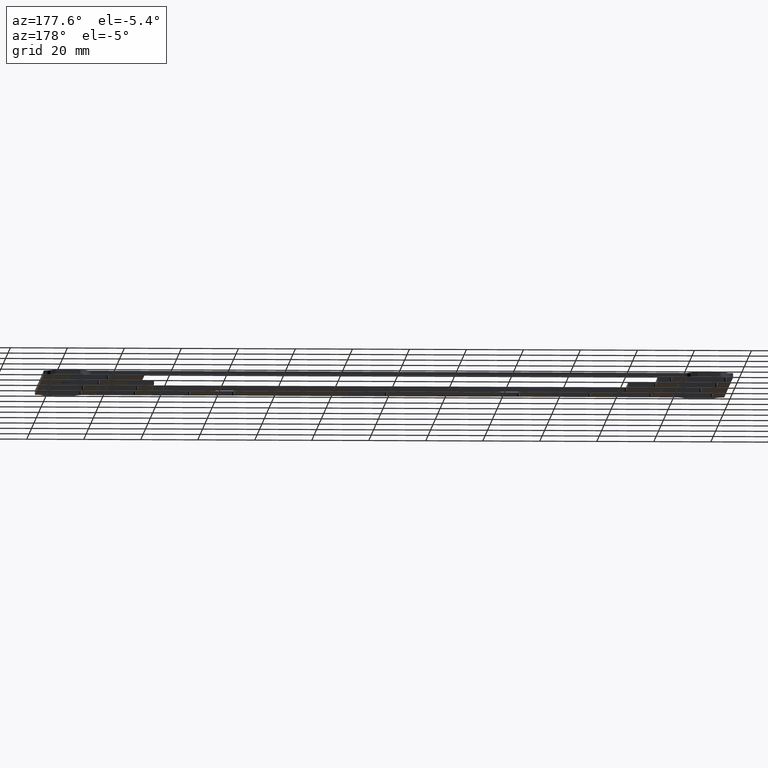
[diagram: clean part render]
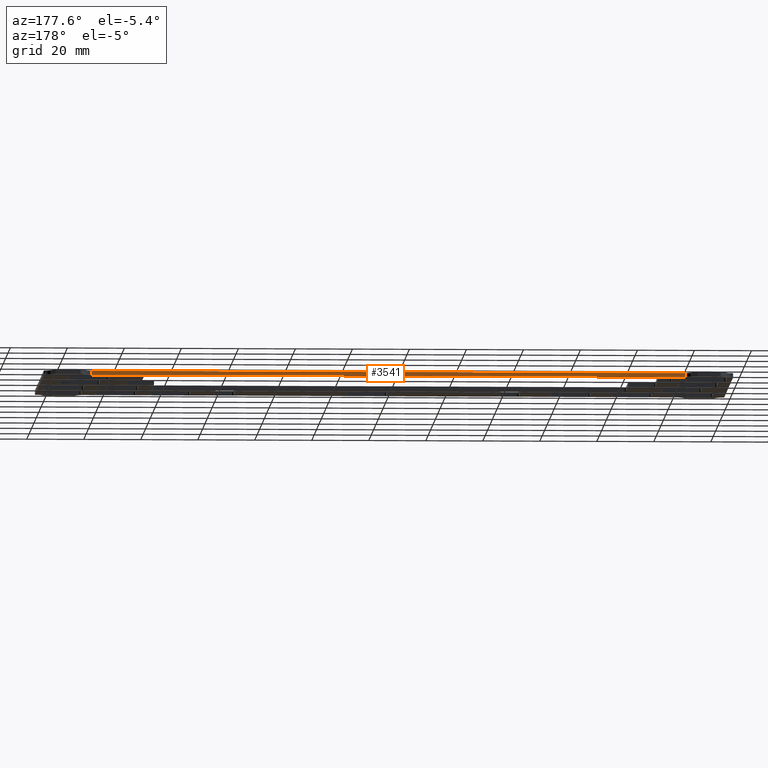
[diagram: same view with one face highlighted and labeled with its STEP entity id]
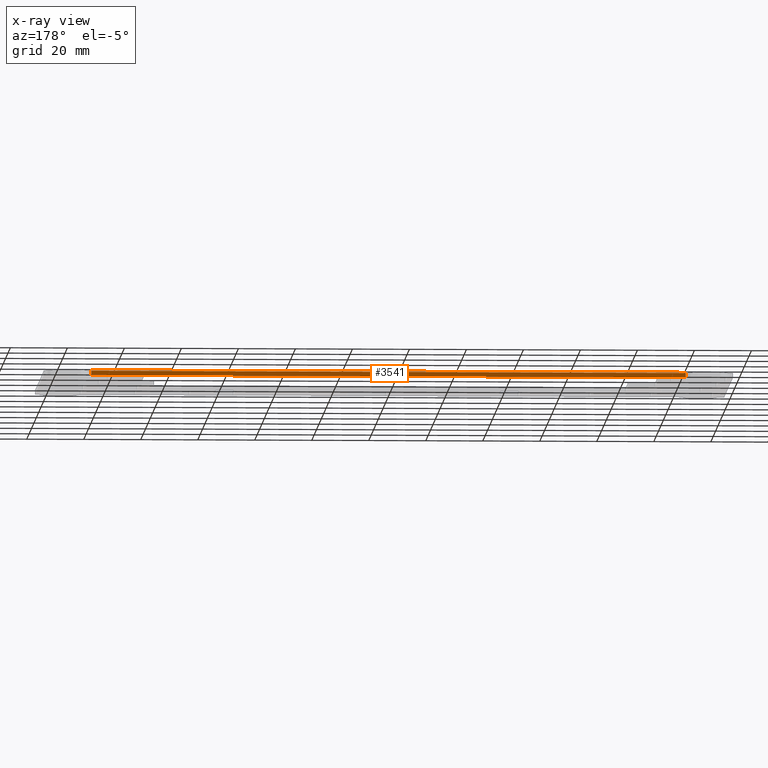
[diagram: x-ray of the same camera — body ghosted, the highlighted face saturated]
A machine part, auxiliary view. The second image highlights one B-rep face of the part: STEP entity #3541.
The next image is the same camera in x-ray: the body ghosted, the highlighted face saturated — about 0% of this face is hidden behind the body in this view.
In plain terms, the highlighted planar face has unit normal (0, -1, 0).
Its self-contained STEP definition (entity closure, byte-faithful):
#321=FACE_OUTER_BOUND('',#503,.T.);
#503=EDGE_LOOP('',(#2423,#2424,#2425,#2426));
#745=LINE('',#5264,#1117);
#746=LINE('',#5267,#1118);
#747=LINE('',#5269,#1119);
#748=LINE('',#5270,#1120);
#1117=VECTOR('',#4183,10.);
#1118=VECTOR('',#4186,10.);
#1119=VECTOR('',#4187,10.);
#1120=VECTOR('',#4188,10.);
#1483=VERTEX_POINT('',#5260);
#1484=VERTEX_POINT('',#5262);
#1485=VERTEX_POINT('',#5266);
#1486=VERTEX_POINT('',#5268);
#1863=EDGE_CURVE('',#1484,#1483,#745,.T.);
#1864=EDGE_CURVE('',#1483,#1485,#746,.T.);
#1865=EDGE_CURVE('',#1486,#1484,#747,.T.);
#1866=EDGE_CURVE('',#1486,#1485,#748,.T.);
#2423=ORIENTED_EDGE('',*,*,#1864,.F.);
#2424=ORIENTED_EDGE('',*,*,#1863,.F.);
#2425=ORIENTED_EDGE('',*,*,#1865,.F.);
#2426=ORIENTED_EDGE('',*,*,#1866,.T.);
#3436=PLANE('',#3751);
#3541=ADVANCED_FACE('',(#321),#3436,.F.);
#3751=AXIS2_PLACEMENT_3D('',#5265,#4184,#4185);
#4183=DIRECTION('',(0.,0.,-1.));
#4184=DIRECTION('center_axis',(1.26528094285306E-17,-1.,0.));
#4185=DIRECTION('ref_axis',(-1.,-1.26528094285306E-17,0.));
#4186=DIRECTION('',(1.,1.26528094285306E-17,0.));
#4187=DIRECTION('',(-1.,-1.26528094285306E-17,0.));
#4188=DIRECTION('',(0.,0.,-1.));
#5260=CARTESIAN_POINT('',(17.2463502691896,-0.525,0.));
#5262=CARTESIAN_POINT('',(17.2463502691896,-0.525,1.5));
#5264=CARTESIAN_POINT('',(17.2463502691896,-0.525,1.5));
#5265=CARTESIAN_POINT('Origin',(225.64114973081,-0.524999999999997,1.5));
#5266=CARTESIAN_POINT('',(225.64114973081,-0.524999999999997,0.));
#5267=CARTESIAN_POINT('',(173.542449865405,-0.524999999999998,0.));
#5268=CARTESIAN_POINT('',(225.64114973081,-0.524999999999997,1.5));
#5269=CARTESIAN_POINT('',(173.542449865405,-0.524999999999998,1.5));
#5270=CARTESIAN_POINT('',(225.64114973081,-0.524999999999997,1.5));